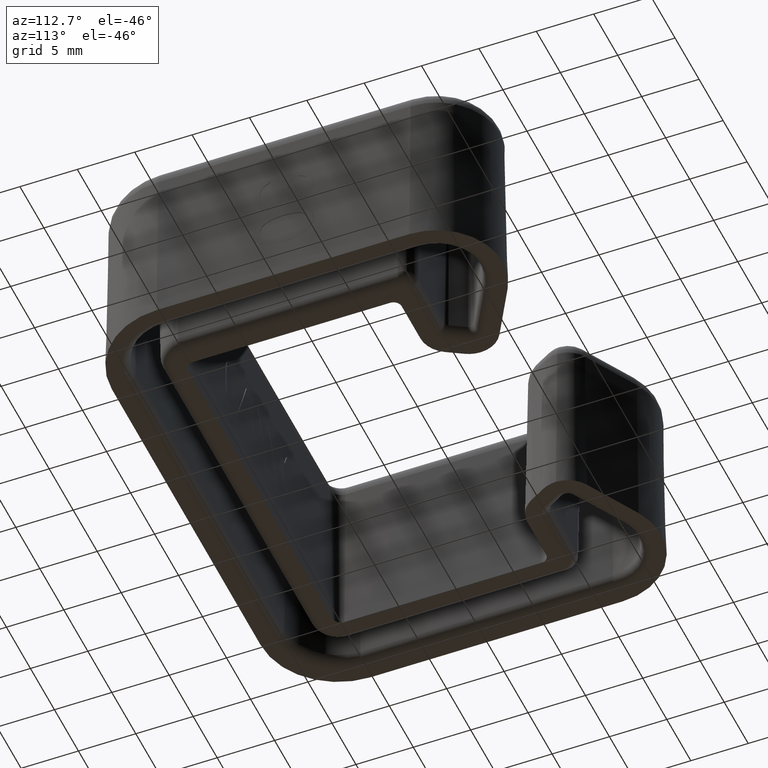
[diagram: clean part render]
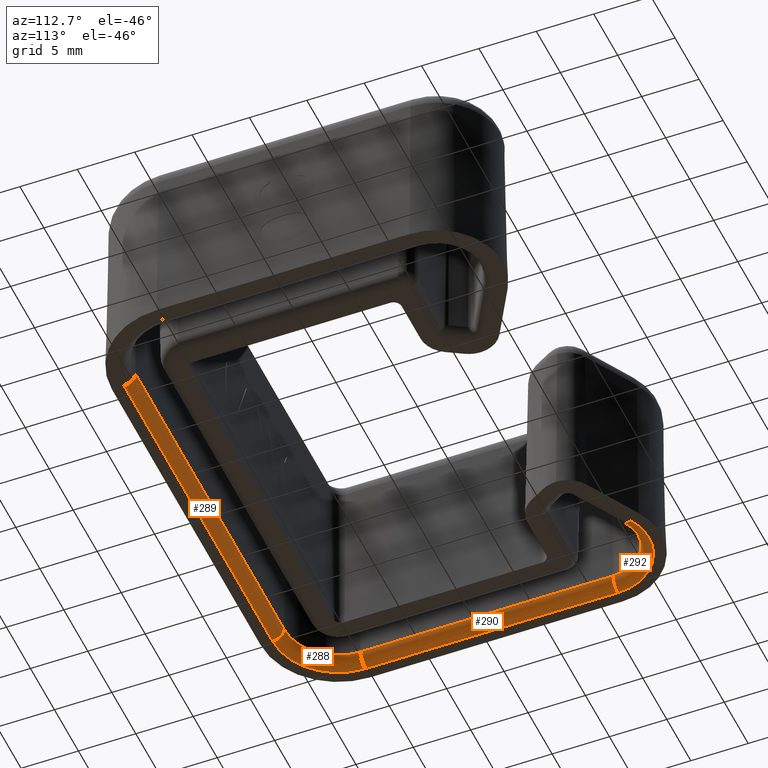
[diagram: same view with one multi-face feature highlighted, each face labeled with its STEP entity id]
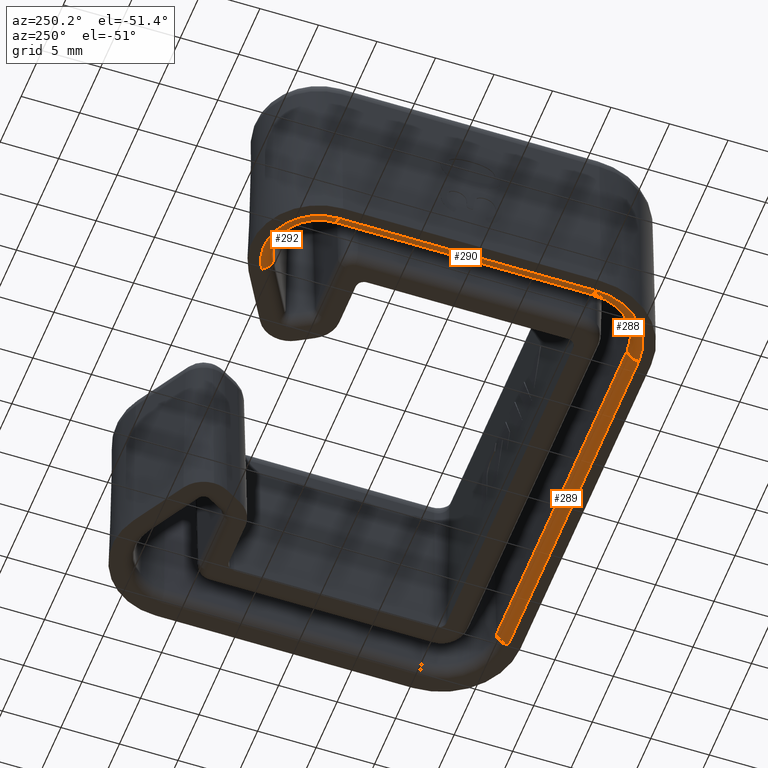
[diagram: same view with one multi-face feature highlighted, each face labeled with its STEP entity id]
A machine part, auxiliary view. The highlighted faces form ONE feature: a constant-radius fillet chain: 4 tangent blend faces with common blend radius 1 mm. The faces share edges in the B-rep.
A second angle (auxiliary view) of the same feature is appended — it is thin or edge-on in the first view.
Their STEP definitions:
[1] entity #292 (Torus):
#292=ADVANCED_FACE('',(#630),#631,.T.);
#630=FACE_OUTER_BOUND('',#1043,.T.);
#631=TOROIDAL_SURFACE('',#1044,4.69452323703927,1.0);
#1043=EDGE_LOOP('',(#2481,#2482,#2483,#2484));
#1044=AXIS2_PLACEMENT_3D('',#2485,#2486,#2487);
#2481=ORIENTED_EDGE('',*,*,#3166,.T.);
#2482=ORIENTED_EDGE('',*,*,#3167,.F.);
#2483=ORIENTED_EDGE('',*,*,#3162,.F.);
#2484=ORIENTED_EDGE('',*,*,#3042,.F.);
#2485=CARTESIAN_POINT('',(-16.5000000000137,26.4999999999833,1.0));
#2486=DIRECTION('',(0.0,0.0,-1.0));
#2487=DIRECTION('',(-1.0,0.0,0.0));
#3042=EDGE_CURVE('',#3657,#3622,#3659,.F.);
#3162=EDGE_CURVE('',#3622,#3846,#3847,.T.);
#3166=EDGE_CURVE('',#3657,#3852,#3853,.T.);
#3167=EDGE_CURVE('',#3846,#3852,#3854,.T.);
#3622=VERTEX_POINT('',#5254);
#3657=VERTEX_POINT('',#5299);
#3659=CIRCLE('',#5302,4.69452323703927);
#3846=VERTEX_POINT('',#5548);
#3847=CIRCLE('',#5549,1.0);
#3852=VERTEX_POINT('',#5555);
#3853=CIRCLE('',#5556,1.0);
#3854=CIRCLE('',#5557,3.69467554188288);
#5254=CARTESIAN_POINT('',(-21.194523237053,26.4999999999812,0.0));
#5299=CARTESIAN_POINT('',(-14.1527383814965,30.5655763819172,0.0));
#5302=AXIS2_PLACEMENT_3D('',#5964,#5965,#5966);
#5548=CARTESIAN_POINT('',(-20.1946755418965,26.4999999999817,0.98254759356272));
#5549=AXIS2_PLACEMENT_3D('',#6206,#6207,#6208);
#5555=CARTESIAN_POINT('',(-14.6526622290742,29.6996828779961,0.982547593562718));
#5556=AXIS2_PLACEMENT_3D('',#6216,#6217,#6218);
#5557=AXIS2_PLACEMENT_3D('',#6219,#6220,#6221);
#5964=CARTESIAN_POINT('',(-16.5000000000137,26.4999999999833,2.16840434497101E-16));
#5965=DIRECTION('',(0.0,0.0,-1.0));
#5966=DIRECTION('',(-1.0,0.0,0.0));
#6206=CARTESIAN_POINT('',(-21.194523237053,26.4999999999812,1.0));
#6207=DIRECTION('',(4.44156857090719E-13,-1.0,0.0));
#6208=DIRECTION('',(1.0,4.44156857090719E-13,0.0));
#6216=CARTESIAN_POINT('',(-14.1527383814965,30.5655763819172,1.0));
#6217=DIRECTION('',(-0.86602540378475,0.499999999999461,0.0));
#6218=DIRECTION('',(-0.499999999999461,-0.86602540378475,0.0));
#6219=CARTESIAN_POINT('',(-16.5000000000137,26.4999999999833,0.982547593562719));
#6220=DIRECTION('',(0.0,0.0,-1.0));
#6221=DIRECTION('',(-1.0,0.0,0.0));
[2] entity #290 (Cylinder):
#290=ADVANCED_FACE('',(#626),#627,.T.);
#626=FACE_OUTER_BOUND('',#1039,.T.);
#627=CYLINDRICAL_SURFACE('',#1040,1.0);
#1039=EDGE_LOOP('',(#2467,#2468,#2469,#2470));
#1040=AXIS2_PLACEMENT_3D('',#2471,#2472,#2473);
#2467=ORIENTED_EDGE('',*,*,#3162,.T.);
#2468=ORIENTED_EDGE('',*,*,#3163,.F.);
#2469=ORIENTED_EDGE('',*,*,#3157,.F.);
#2470=ORIENTED_EDGE('',*,*,#3022,.F.);
#2471=CARTESIAN_POINT('',(-21.1945232370434,4.94999999999645,1.0));
#2472=DIRECTION('',(-4.44089209850129E-13,1.0,0.0));
#2473=DIRECTION('',(1.0,4.44089209850129E-13,0.0));
#3022=EDGE_CURVE('',#3622,#3623,#3624,.F.);
#3157=EDGE_CURVE('',#3623,#3838,#3839,.T.);
#3162=EDGE_CURVE('',#3622,#3846,#3847,.T.);
#3163=EDGE_CURVE('',#3838,#3846,#3848,.F.);
#3622=VERTEX_POINT('',#5254);
#3623=VERTEX_POINT('',#5255);
#3624=LINE('',#5256,#5257);
#3838=VERTEX_POINT('',#5539);
#3839=CIRCLE('',#5540,1.0);
#3846=VERTEX_POINT('',#5548);
#3847=CIRCLE('',#5549,1.0);
#3848=LINE('',#5550,#5551);
#5254=CARTESIAN_POINT('',(-21.194523237053,26.4999999999812,0.0));
#5255=CARTESIAN_POINT('',(-21.1945232370432,4.49999999998356,0.0));
#5256=CARTESIAN_POINT('',(-21.1945232370432,4.49999999998356,4.33680868994202E-16));
#5257=VECTOR('',#5926,1000.0);
#5539=CARTESIAN_POINT('',(-20.1946755418868,4.499999999984,0.982547593562718));
#5540=AXIS2_PLACEMENT_3D('',#6193,#6194,#6195);
#5548=CARTESIAN_POINT('',(-20.1946755418965,26.4999999999817,0.98254759356272));
#5549=AXIS2_PLACEMENT_3D('',#6206,#6207,#6208);
#5550=CARTESIAN_POINT('',(-20.1946755418965,26.4999999999817,0.982547593562716));
#5551=VECTOR('',#6209,1000.0);
#5926=DIRECTION('',(-4.4408920985013E-13,1.0,0.0));
#6193=CARTESIAN_POINT('',(-21.1945232370432,4.49999999998356,1.0));
#6194=DIRECTION('',(4.43289363229216E-13,-1.0,0.0));
#6195=DIRECTION('',(1.0,4.43289363229216E-13,0.0));
#6206=CARTESIAN_POINT('',(-21.194523237053,26.4999999999812,1.0));
#6207=DIRECTION('',(4.44156857090719E-13,-1.0,0.0));
#6208=DIRECTION('',(1.0,4.44156857090719E-13,0.0));
#6209=DIRECTION('',(4.4408920985013E-13,-1.0,8.81121352985631E-31));
[3] entity #288 (Torus):
#288=ADVANCED_FACE('',(#622),#623,.T.);
#622=FACE_OUTER_BOUND('',#1035,.T.);
#623=TOROIDAL_SURFACE('',#1036,5.69452323703778,1.0);
#1035=EDGE_LOOP('',(#2453,#2454,#2455,#2456));
#1036=AXIS2_PLACEMENT_3D('',#2457,#2458,#2459);
#2453=ORIENTED_EDGE('',*,*,#3157,.T.);
#2454=ORIENTED_EDGE('',*,*,#3158,.F.);
#2455=ORIENTED_EDGE('',*,*,#3159,.T.);
#2456=ORIENTED_EDGE('',*,*,#3023,.F.);
#2457=CARTESIAN_POINT('',(-15.5000000000041,4.49999999998608,1.0));
#2458=DIRECTION('',(0.0,0.0,-1.0));
#2459=DIRECTION('',(-1.0,0.0,0.0));
#3023=EDGE_CURVE('',#3623,#3625,#3626,.F.);
#3157=EDGE_CURVE('',#3623,#3838,#3839,.T.);
#3158=EDGE_CURVE('',#3840,#3838,#3841,.T.);
#3159=EDGE_CURVE('',#3840,#3625,#3842,.T.);
#3623=VERTEX_POINT('',#5255);
#3625=VERTEX_POINT('',#5258);
#3626=CIRCLE('',#5259,5.69452323703778);
#3838=VERTEX_POINT('',#5539);
#3839=CIRCLE('',#5540,1.0);
#3840=VERTEX_POINT('',#5541);
#3841=CIRCLE('',#5542,4.69467554188139);
#3842=CIRCLE('',#5543,1.0);
#5255=CARTESIAN_POINT('',(-21.1945232370432,4.49999999998356,0.0));
#5258=CARTESIAN_POINT('',(-15.4999999999994,-1.19452323705185,0.0));
#5259=AXIS2_PLACEMENT_3D('',#5927,#5928,#5929);
#5539=CARTESIAN_POINT('',(-20.1946755418868,4.499999999984,0.982547593562718));
#5540=AXIS2_PLACEMENT_3D('',#6193,#6194,#6195);
#5541=CARTESIAN_POINT('',(-15.5,-0.1946755418953,0.982547593562715));
#5542=AXIS2_PLACEMENT_3D('',#6196,#6197,#6198);
#5543=AXIS2_PLACEMENT_3D('',#6199,#6200,#6201);
#5927=CARTESIAN_POINT('',(-15.5000000000041,4.49999999998608,2.16840434497101E-16));
#5928=DIRECTION('',(0.0,0.0,-1.0));
#5929=DIRECTION('',(-1.0,0.0,0.0));
#6193=CARTESIAN_POINT('',(-21.1945232370432,4.49999999998356,1.0));
#6194=DIRECTION('',(4.43289363229216E-13,-1.0,0.0));
#6195=DIRECTION('',(1.0,4.43289363229216E-13,0.0));
#6196=CARTESIAN_POINT('',(-15.5000000000041,4.49999999998608,0.982547593562719));
#6197=DIRECTION('',(0.0,0.0,-1.0));
#6198=DIRECTION('',(-1.0,0.0,0.0));
#6199=CARTESIAN_POINT('',(-15.4999999999994,-1.19452323705185,1.0));
#6200=DIRECTION('',(-1.0,-8.32763827334194E-13,1.73472347597699E-15));
#6201=DIRECTION('',(8.32763827334194E-13,-1.0,-1.75162308040621E-43));
[4] entity #289 (Cylinder):
#289=ADVANCED_FACE('',(#624),#625,.T.);
#624=FACE_OUTER_BOUND('',#1037,.T.);
#625=CYLINDRICAL_SURFACE('',#1038,1.0);
#1037=EDGE_LOOP('',(#2460,#2461,#2462,#2463));
#1038=AXIS2_PLACEMENT_3D('',#2464,#2465,#2466);
#2460=ORIENTED_EDGE('',*,*,#3160,.T.);
#2461=ORIENTED_EDGE('',*,*,#3024,.F.);
#2462=ORIENTED_EDGE('',*,*,#3159,.F.);
#2463=ORIENTED_EDGE('',*,*,#3161,.F.);
#2464=CARTESIAN_POINT('',(15.0500000000009,-1.19452323702643,1.0));
#2465=DIRECTION('',(-1.0,-8.32219597894418E-13,-0.0));
#2466=DIRECTION('',(-8.32219597894418E-13,1.0,0.0));
#3024=EDGE_CURVE('',#3625,#3627,#3628,.F.);
#3159=EDGE_CURVE('',#3840,#3625,#3842,.T.);
#3160=EDGE_CURVE('',#3843,#3627,#3844,.T.);
#3161=EDGE_CURVE('',#3843,#3840,#3845,.F.);
#3625=VERTEX_POINT('',#5258);
#3627=VERTEX_POINT('',#5260);
#3628=LINE('',#5261,#5262);
#3840=VERTEX_POINT('',#5541);
#3842=CIRCLE('',#5543,1.0);
#3843=VERTEX_POINT('',#5544);
#3844=CIRCLE('',#5545,1.0);
#3845=LINE('',#5546,#5547);
#5258=CARTESIAN_POINT('',(-15.4999999999994,-1.19452323705185,0.0));
#5260=CARTESIAN_POINT('',(15.5000000000029,-1.19452323702605,0.0));
#5261=CARTESIAN_POINT('',(15.5000000000029,-1.19452323702605,4.33680868994202E-16));
#5262=VECTOR('',#5930,1000.0);
#5541=CARTESIAN_POINT('',(-15.5,-0.1946755418953,0.982547593562715));
#5543=AXIS2_PLACEMENT_3D('',#6199,#6200,#6201);
#5544=CARTESIAN_POINT('',(15.500000000002,-0.194675541869663,0.982547593562718));
#5545=AXIS2_PLACEMENT_3D('',#6202,#6203,#6204);
#5546=CARTESIAN_POINT('',(-15.5,-0.194675541895462,0.982547593562716));
#5547=VECTOR('',#6205,1000.0);
#5930=DIRECTION('',(-1.0,-8.32219597894419E-13,0.0));
#6199=CARTESIAN_POINT('',(-15.4999999999994,-1.19452323705185,1.0));
#6200=DIRECTION('',(-1.0,-8.32763827334194E-13,1.73472347597699E-15));
#6201=DIRECTION('',(8.32763827334194E-13,-1.0,-1.75162308040621E-43));
#6202=CARTESIAN_POINT('',(15.5000000000029,-1.19452323702326,1.0));
#6203=DIRECTION('',(-1.0,-8.32794107045099E-13,-1.0835006161097E-27));
#6204=DIRECTION('',(8.32794107045099E-13,-1.0,1.09405603434474E-55));
#6205=DIRECTION('',(1.0,8.32219597894418E-13,0.0));